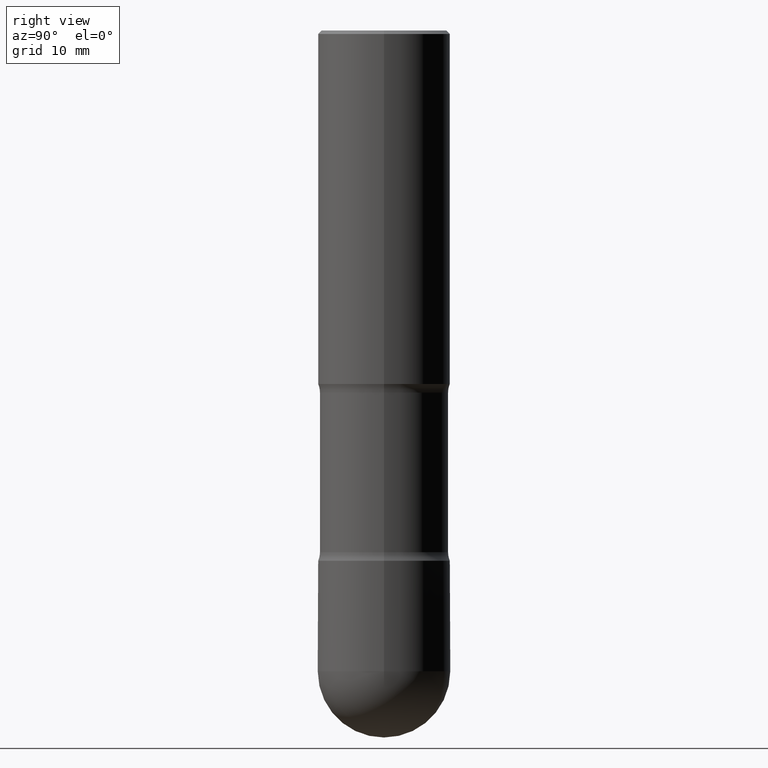
[diagram: clean part render]
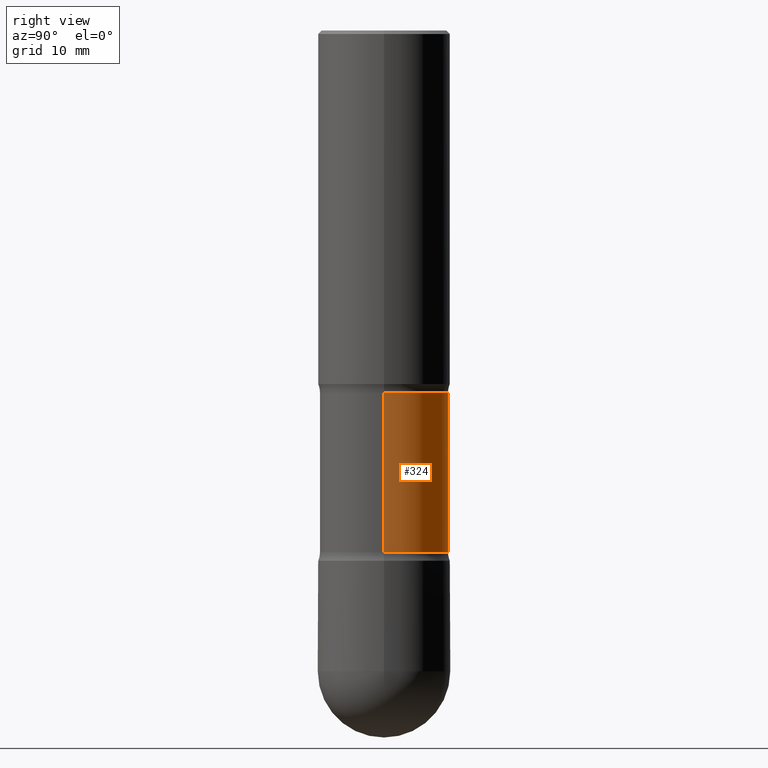
[diagram: same view with one face highlighted and labeled with its STEP entity id]
A machine part, right view. The second image highlights one B-rep face of the part: STEP entity #324.
In plain terms, the highlighted cylindrical surface (partial cylindrical patch) has radius 9.271 mm, axis along (0, -0, -1).
Its self-contained STEP definition (entity closure, byte-faithful):
#4 = CARTESIAN_POINT ( 'NONE',  ( -0.3649999999999996581, -7.925662639173949635E-15, -2.999999999999999556 ) ) ;
#8 = DIRECTION ( 'NONE',  ( 2.445468806185136597E-29, -3.491481338843145583E-15, -1.000000000000000000 ) ) ;
#12 = FACE_OUTER_BOUND ( 'NONE', #509, .T. ) ;
#50 = AXIS2_PLACEMENT_3D ( 'NONE', #445, #55, #186 ) ;
#55 = DIRECTION ( 'NONE',  ( 2.445468806185136597E-29, -3.491481338843145583E-15, -1.000000000000000000 ) ) ;
#88 = CARTESIAN_POINT ( 'NONE',  ( 7.336406418555408669E-29, -1.047444401652943478E-14, -2.999999999999999556 ) ) ;
#119 = VERTEX_POINT ( 'NONE', #326 ) ;
#122 = ORIENTED_EDGE ( 'NONE', *, *, #482, .F. ) ;
#140 = CARTESIAN_POINT ( 'NONE',  ( 0.3649999999999996581, -1.297852578571604102E-14, -2.999999999999999556 ) ) ;
#168 = VERTEX_POINT ( 'NONE', #264 ) ;
#179 = LINE ( 'NONE', #140, #406 ) ;
#186 = DIRECTION ( 'NONE',  ( -1.000000000000000000, 6.982962677686267499E-15, 0.000000000000000000 ) ) ;
#223 = CIRCLE ( 'NONE', #50, 0.3649999999999996581 ) ;
#255 = CARTESIAN_POINT ( 'NONE',  ( 0.3649999999999996581, -1.123278511629446961E-14, -2.951010205144335874 ) ) ;
#260 = ORIENTED_EDGE ( 'NONE', *, *, #348, .F. ) ;
#264 = CARTESIAN_POINT ( 'NONE',  ( -0.3649999999999997136, -4.605228254863111737E-15, -2.048989794855664126 ) ) ;
#265 = CYLINDRICAL_SURFACE ( 'NONE', #423, 0.3649999999999996581 ) ;
#275 = CIRCLE ( 'NONE', #347, 0.3649999999999997136 ) ;
#313 = DIRECTION ( 'NONE',  ( 2.445468806185136877E-29, -3.491481338843145188E-15, -1.000000000000000000 ) ) ;
#317 = EDGE_CURVE ( 'NONE', #119, #548, #179, .T. ) ;
#324 = ADVANCED_FACE ( 'NONE', ( #12 ), #265, .T. ) ;
#326 = CARTESIAN_POINT ( 'NONE',  ( 0.3649999999999997136, -9.606870414127914833E-15, -2.048989794855664126 ) ) ;
#347 = AXIS2_PLACEMENT_3D ( 'NONE', #479, #352, #390 ) ;
#348 = EDGE_CURVE ( 'NONE', #168, #558, #517, .T. ) ;
#352 = DIRECTION ( 'NONE',  ( 2.445468806185136597E-29, -3.491481338843145583E-15, -1.000000000000000000 ) ) ;
#358 = DIRECTION ( 'NONE',  ( -1.000000000000000000, 6.982962677686267499E-15, 0.000000000000000000 ) ) ;
#380 = CARTESIAN_POINT ( 'NONE',  ( -0.3649999999999996581, -7.754615684641645500E-15, -2.951010205144335874 ) ) ;
#390 = DIRECTION ( 'NONE',  ( -1.000000000000000000, 6.982962677686265922E-15, 0.000000000000000000 ) ) ;
#406 = VECTOR ( 'NONE', #477, 39.37007874015748143 ) ;
#423 = AXIS2_PLACEMENT_3D ( 'NONE', #88, #8, #358 ) ;
#430 = EDGE_CURVE ( 'NONE', #168, #119, #275, .T. ) ;
#445 = CARTESIAN_POINT ( 'NONE',  ( 7.216603403414474689E-29, -1.030339706199713064E-14, -2.951010205144335874 ) ) ;
#446 = VECTOR ( 'NONE', #313, 39.37007874015748143 ) ;
#458 = ORIENTED_EDGE ( 'NONE', *, *, #317, .T. ) ;
#463 = ORIENTED_EDGE ( 'NONE', *, *, #430, .T. ) ;
#477 = DIRECTION ( 'NONE',  ( 2.445468806185136877E-29, -3.491481338843145188E-15, -1.000000000000000000 ) ) ;
#479 = CARTESIAN_POINT ( 'NONE',  ( 5.010740627511209416E-29, -7.154009632218597667E-15, -2.048989794855664126 ) ) ;
#482 = EDGE_CURVE ( 'NONE', #558, #548, #223, .T. ) ;
#509 = EDGE_LOOP ( 'NONE', ( #463, #458, #122, #260 ) ) ;
#517 = LINE ( 'NONE', #4, #446 ) ;
#548 = VERTEX_POINT ( 'NONE', #255 ) ;
#558 = VERTEX_POINT ( 'NONE', #380 ) ;